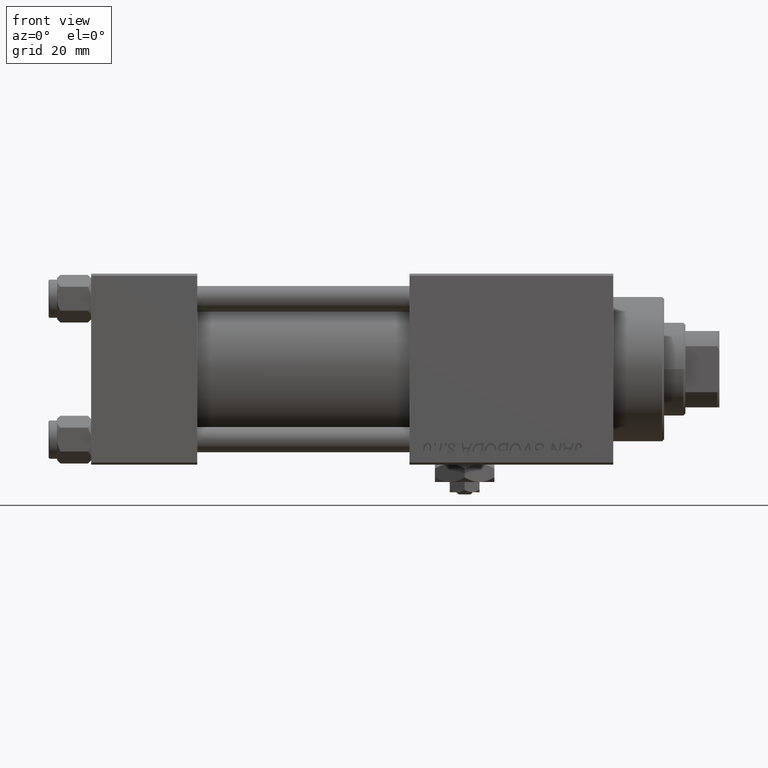
[diagram: clean part render]
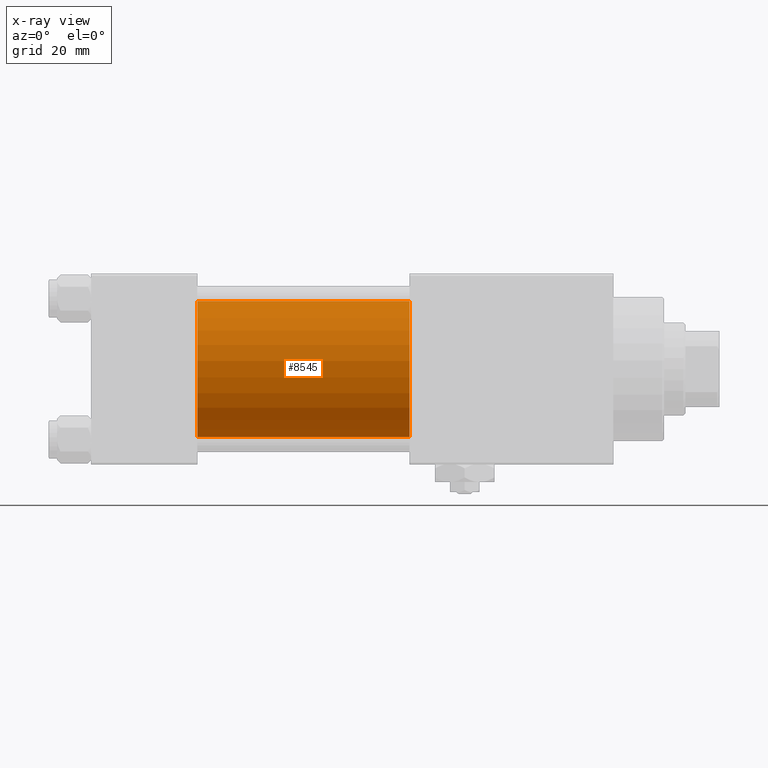
[diagram: x-ray — body ghosted, one internal face saturated and labeled with its STEP entity id]
A machine part, front view, then the same camera in x-ray: the body is ghosted and one INTERNAL B-rep face — a face not visible from any outside direction — is saturated and labeled: STEP entity #8545.
In plain terms, the highlighted cylindrical surface (partial cylindrical patch) has radius 16 mm, axis along (-1, -0, -0).
Its self-contained STEP definition (entity closure, byte-faithful):
#2001 = VERTEX_POINT ( 'NONE', #32573 ) ;
#4263 = EDGE_LOOP ( 'NONE', ( #8016, #25694, #43939, #51827 ) ) ;
#6054 = DIRECTION ( 'NONE',  ( 0.000000000000000000, 0.000000000000000000, -1.000000000000000000 ) ) ;
#7949 = EDGE_CURVE ( 'NONE', #41404, #21741, #33229, .T. ) ;
#8016 = ORIENTED_EDGE ( 'NONE', *, *, #7949, .T. ) ;
#8545 = ADVANCED_FACE ( 'NONE', ( #25267 ), #41532, .F. ) ;
#8924 = AXIS2_PLACEMENT_3D ( 'NONE', #25019, #13990, #21088 ) ;
#9998 = DIRECTION ( 'NONE',  ( 1.000000000000000000, 0.000000000000000000, 0.000000000000000000 ) ) ;
#10750 = VECTOR ( 'NONE', #47867, 1000.000000000000000 ) ;
#11454 = LINE ( 'NONE', #35064, #31729 ) ;
#12459 = CARTESIAN_POINT ( 'NONE',  ( 75.00000000000001421, -2.602085213965210642E-15, 16.00000000000000000 ) ) ;
#13990 = DIRECTION ( 'NONE',  ( -1.000000000000000000, -0.000000000000000000, -0.000000000000000000 ) ) ;
#21088 = DIRECTION ( 'NONE',  ( 0.000000000000000000, 0.000000000000000000, 1.000000000000000000 ) ) ;
#21741 = VERTEX_POINT ( 'NONE', #26416 ) ;
#24833 = AXIS2_PLACEMENT_3D ( 'NONE', #33601, #45391, #25707 ) ;
#24990 = VERTEX_POINT ( 'NONE', #47865 ) ;
#25019 = CARTESIAN_POINT ( 'NONE',  ( 75.00000000000001421, -2.602085213965210642E-15, 0.000000000000000000 ) ) ;
#25267 = FACE_OUTER_BOUND ( 'NONE', #4263, .T. ) ;
#25694 = ORIENTED_EDGE ( 'NONE', *, *, #49175, .T. ) ;
#25707 = DIRECTION ( 'NONE',  ( 0.000000000000000000, 0.000000000000000000, -1.000000000000000000 ) ) ;
#25997 = CARTESIAN_POINT ( 'NONE',  ( 25.00000000000000000, -2.602085213965210642E-15, 0.000000000000000000 ) ) ;
#26416 = CARTESIAN_POINT ( 'NONE',  ( 75.00000000000001421, -6.426503353294456087E-16, -16.00000000000000000 ) ) ;
#31729 = VECTOR ( 'NONE', #43186, 1000.000000000000000 ) ;
#32573 = CARTESIAN_POINT ( 'NONE',  ( 25.00000000000000000, -2.602085213965210642E-15, 16.00000000000000000 ) ) ;
#33229 = CIRCLE ( 'NONE', #24833, 16.00000000000000000 ) ;
#33601 = CARTESIAN_POINT ( 'NONE',  ( 75.00000000000001421, -2.602085213965210642E-15, 0.000000000000000000 ) ) ;
#35064 = CARTESIAN_POINT ( 'NONE',  ( 75.00000000000001421, -6.426503353294456087E-16, -16.00000000000000000 ) ) ;
#36670 = CIRCLE ( 'NONE', #37489, 16.00000000000000000 ) ;
#37489 = AXIS2_PLACEMENT_3D ( 'NONE', #25997, #9998, #6054 ) ;
#40901 = CARTESIAN_POINT ( 'NONE',  ( 75.00000000000001421, -2.602085213965210642E-15, 16.00000000000000000 ) ) ;
#41404 = VERTEX_POINT ( 'NONE', #40901 ) ;
#41532 = CYLINDRICAL_SURFACE ( 'NONE', #8924, 16.00000000000000000 ) ;
#43186 = DIRECTION ( 'NONE',  ( -1.000000000000000000, -0.000000000000000000, -0.000000000000000000 ) ) ;
#43193 = EDGE_CURVE ( 'NONE', #2001, #24990, #36670, .T. ) ;
#43939 = ORIENTED_EDGE ( 'NONE', *, *, #43193, .F. ) ;
#45197 = EDGE_CURVE ( 'NONE', #41404, #2001, #51797, .T. ) ;
#45391 = DIRECTION ( 'NONE',  ( 1.000000000000000000, 0.000000000000000000, 0.000000000000000000 ) ) ;
#47865 = CARTESIAN_POINT ( 'NONE',  ( 25.00000000000000000, -6.426503353294456087E-16, -16.00000000000000000 ) ) ;
#47867 = DIRECTION ( 'NONE',  ( -1.000000000000000000, -0.000000000000000000, -0.000000000000000000 ) ) ;
#49175 = EDGE_CURVE ( 'NONE', #21741, #24990, #11454, .T. ) ;
#51797 = LINE ( 'NONE', #12459, #10750 ) ;
#51827 = ORIENTED_EDGE ( 'NONE', *, *, #45197, .F. ) ;